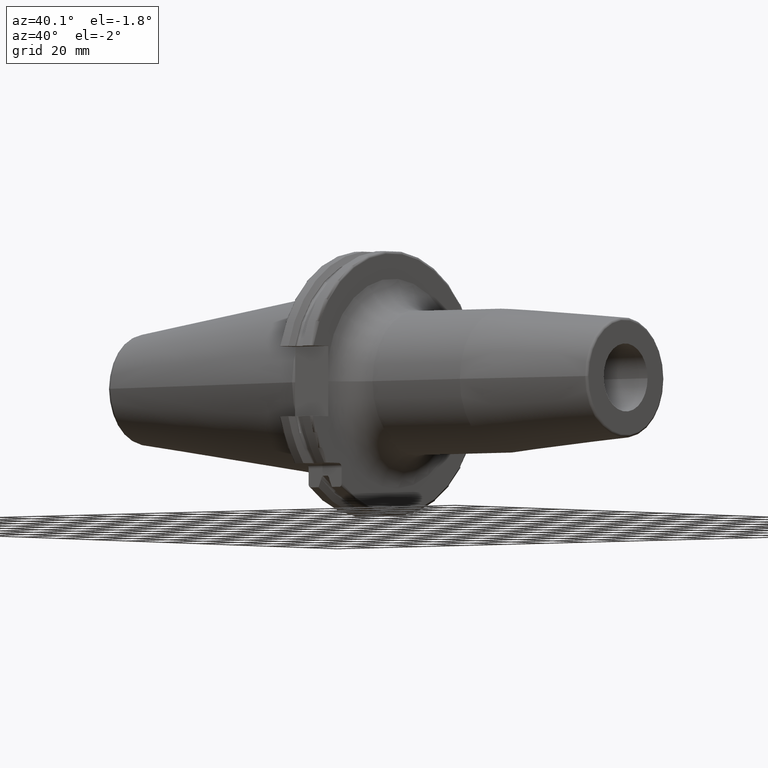
[diagram: clean part render]
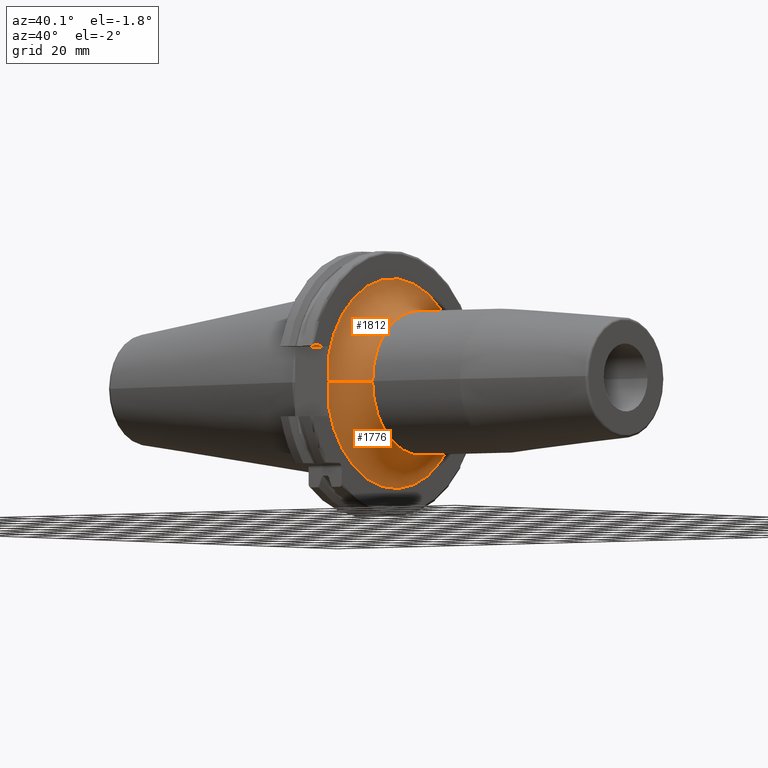
[diagram: same view with one multi-face feature highlighted, each face labeled with its STEP entity id]
A machine part, auxiliary view. The highlighted faces form ONE feature: a constant-radius fillet chain: 2 tangent blend faces with common blend radius 12 mm. The faces share edges in the B-rep.
Their STEP definitions:
[1] entity #1776 (Torus):
#126=CARTESIAN_POINT('',(1.905E1,0.E0,0.E0));
#127=DIRECTION('',(1.E0,0.E0,0.E0));
#128=DIRECTION('',(0.E0,-9.740227571911E-1,-2.264501456698E-1));
#129=AXIS2_PLACEMENT_3D('',#126,#127,#128);
#168=CARTESIAN_POINT('',(1.909173923321E1,-3.75E1,-4.609148908321E-3));
#169=CARTESIAN_POINT('',(1.909173257439E1,-3.75E1,-6.524612713159E-1));
#170=CARTESIAN_POINT('',(1.908878751441E1,-3.750000017558E1,-1.973005974719E0));
#171=CARTESIAN_POINT('',(1.907662175047E1,-3.749999938546E1,-3.981108997934E0));
#172=CARTESIAN_POINT('',(1.905945285205E1,-3.750000228258E1,-6.158205015502E0));
#173=CARTESIAN_POINT('',(1.905E1,-3.749999508366E1,-7.833713653429E0));
#174=CARTESIAN_POINT('',(1.905E1,-3.749999508366E1,-8.718006206379E0));
#176=CARTESIAN_POINT('',(3.105E1,-3.849999970919E1,-4.732059510132E-3));
#177=DIRECTION('',(0.E0,1.229106366268E-4,-9.999999924465E-1));
#178=DIRECTION('',(-9.965217305657E-1,8.333330909915E-2,1.024255015096E-5));
#179=AXIS2_PLACEMENT_3D('',#176,#177,#178);
#181=CARTESIAN_POINT('',(1.908506987748E1,3.53E1,-1.29E1));
#182=CARTESIAN_POINT('',(1.911130074422E1,3.53E1,-1.190259367515E1));
#183=CARTESIAN_POINT('',(1.918615062163E1,3.53E1,-9.954011799594E0));
#184=CARTESIAN_POINT('',(1.931372287873E1,3.53E1,-7.123640777465E0));
#185=CARTESIAN_POINT('',(1.941452708630E1,3.53E1,-4.518600156820E0));
#186=CARTESIAN_POINT('',(1.947345293102E1,3.53E1,-2.126169375915E0));
#187=CARTESIAN_POINT('',(1.948455742581E1,3.53E1,-6.812804737907E-1));
#188=CARTESIAN_POINT('',(1.948453409026E1,3.53E1,4.342307535141E-3));
#190=CARTESIAN_POINT('',(1.905E1,3.627451494753E1,-1.290002180538E1));
#191=CARTESIAN_POINT('',(1.905E1,3.611016461991E1,-1.290002180538E1));
#192=CARTESIAN_POINT('',(1.905599236746E1,3.578338474467E1,-1.289998909731E1));
#193=CARTESIAN_POINT('',(1.907352003926E1,3.546049088899E1,-1.29E1));
#194=CARTESIAN_POINT('',(1.908506987748E1,3.53E1,-1.29E1));
#206=CARTESIAN_POINT('',(1.948453409026E1,3.53E1,4.342307535141E-3));
#215=CARTESIAN_POINT('',(3.105E1,3.849999970871E1,4.735944443007E-3));
#216=DIRECTION('',(0.E0,-1.230115439742E-4,9.999999924341E-1));
#217=DIRECTION('',(-9.637888258114E-1,-2.666666423927E-1,-3.280307565533E-5));
#218=AXIS2_PLACEMENT_3D('',#215,#216,#217);
#226=CARTESIAN_POINT('',(1.909173923321E1,-3.75E1,-4.609148908321E-3));
#962=CARTESIAN_POINT('',(3.105E1,0.E0,0.E0));
#963=DIRECTION('',(1.E0,0.E0,0.E0));
#964=DIRECTION('',(0.E0,-1.E0,0.E0));
#965=AXIS2_PLACEMENT_3D('',#962,#963,#964);
#1484=CARTESIAN_POINT('',(1.905E1,-3.749987615186E1,-8.718330608288E0));
#1485=CARTESIAN_POINT('',(1.905E1,3.627451358574E1,-1.289998698132E1));
#1486=VERTEX_POINT('',#1484);
#1487=VERTEX_POINT('',#1485);
#1488=CARTESIAN_POINT('',(3.105E1,-2.65E1,0.E0));
#1489=CARTESIAN_POINT('',(3.105E1,2.65E1,0.E0));
#1490=VERTEX_POINT('',#1488);
#1491=VERTEX_POINT('',#1489);
#1504=VERTEX_POINT('',#206);
#1506=VERTEX_POINT('',#181);
#1507=VERTEX_POINT('',#226);
#1758=CARTESIAN_POINT('',(3.105E1,0.E0,0.E0));
#1759=DIRECTION('',(1.E0,0.E0,0.E0));
#1760=DIRECTION('',(0.E0,-1.485959642860E-3,9.999988959614E-1));
#1761=AXIS2_PLACEMENT_3D('',#1758,#1759,#1760);
#1762=TOROIDAL_SURFACE('',#1761,3.85E1,1.2E1);
#1763=ORIENTED_EDGE('',*,*,#1720,.F.);
#1765=ORIENTED_EDGE('',*,*,#1764,.F.);
#1767=ORIENTED_EDGE('',*,*,#1766,.T.);
#1769=ORIENTED_EDGE('',*,*,#1768,.T.);
#1771=ORIENTED_EDGE('',*,*,#1770,.F.);
#1772=ORIENTED_EDGE('',*,*,#1662,.F.);
#1773=ORIENTED_EDGE('',*,*,#1685,.F.);
#1774=EDGE_LOOP('',(#1763,#1765,#1767,#1769,#1771,#1772,#1773));
#1775=FACE_OUTER_BOUND('',#1774,.F.);
#1776=ADVANCED_FACE('',(#1775),#1762,.F.);
#130=CIRCLE('',#129,3.85E1);
#175=B_SPLINE_CURVE_WITH_KNOTS('',3,(#168,#169,#170,#171,#172,#173,#174),
.UNSPECIFIED.,.F.,.F.,(4,1,1,1,4),(0.E0,2.5E-1,5.E-1,7.5E-1,1.E0),
.UNSPECIFIED.);
#180=CIRCLE('',#179,1.2E1);
#189=B_SPLINE_CURVE_WITH_KNOTS('',3,(#181,#182,#183,#184,#185,#186,#187,#188),
.UNSPECIFIED.,.F.,.F.,(4,1,1,1,1,4),(0.E0,2.E-1,4.E-1,6.E-1,8.E-1,1.E0),
.UNSPECIFIED.);
#195=B_SPLINE_CURVE_WITH_KNOTS('',3,(#190,#191,#192,#193,#194),.UNSPECIFIED.,
.F.,.F.,(4,1,4),(0.E0,5.E-1,1.E0),.UNSPECIFIED.);
#219=CIRCLE('',#218,1.2E1);
#966=CIRCLE('',#965,2.65E1);
#1662=EDGE_CURVE('',#1506,#1504,#189,.T.);
#1685=EDGE_CURVE('',#1487,#1506,#195,.T.);
#1720=EDGE_CURVE('',#1486,#1487,#130,.T.);
#1764=EDGE_CURVE('',#1507,#1486,#175,.T.);
#1766=EDGE_CURVE('',#1507,#1490,#180,.T.);
#1768=EDGE_CURVE('',#1490,#1491,#966,.T.);
#1770=EDGE_CURVE('',#1504,#1491,#219,.T.);
[2] entity #1812 (Torus):
#151=CARTESIAN_POINT('',(1.905E1,0.E0,0.E0));
#152=DIRECTION('',(1.E0,0.E0,0.E0));
#153=DIRECTION('',(0.E0,9.421950764359E-1,3.350648264739E-1));
#154=AXIS2_PLACEMENT_3D('',#151,#152,#153);
#176=CARTESIAN_POINT('',(3.105E1,-3.849999970919E1,-4.732059510132E-3));
#177=DIRECTION('',(0.E0,1.229106366268E-4,-9.999999924465E-1));
#178=DIRECTION('',(-9.965217305657E-1,8.333330909915E-2,1.024255015096E-5));
#179=AXIS2_PLACEMENT_3D('',#176,#177,#178);
#200=CARTESIAN_POINT('',(1.908506987748E1,3.53E1,1.29E1));
#201=CARTESIAN_POINT('',(1.907352069399E1,3.546048179124E1,1.29E1));
#202=CARTESIAN_POINT('',(1.905599303077E1,3.578337571384E1,1.289997628185E1));
#203=CARTESIAN_POINT('',(1.905E1,3.611013705185E1,1.290004743629E1));
#204=CARTESIAN_POINT('',(1.905E1,3.627449650086E1,1.290004743629E1));
#206=CARTESIAN_POINT('',(1.948453409026E1,3.53E1,4.342307535141E-3));
#207=CARTESIAN_POINT('',(1.948451076802E1,3.53E1,6.895743023072E-1));
#208=CARTESIAN_POINT('',(1.947332061544E1,3.53E1,2.133618128360E0));
#209=CARTESIAN_POINT('',(1.941432184081E1,3.53E1,4.524625712119E0));
#210=CARTESIAN_POINT('',(1.931352878356E1,3.53E1,7.127980880441E0));
#211=CARTESIAN_POINT('',(1.918604869387E1,3.53E1,9.956414542695E0));
#212=CARTESIAN_POINT('',(1.911127863181E1,3.53E1,1.190343448062E1));
#213=CARTESIAN_POINT('',(1.908506987748E1,3.53E1,1.29E1));
#215=CARTESIAN_POINT('',(3.105E1,3.849999970871E1,4.735944443007E-3));
#216=DIRECTION('',(0.E0,-1.230115439742E-4,9.999999924341E-1));
#217=DIRECTION('',(-9.637888258114E-1,-2.666666423927E-1,-3.280307565533E-5));
#218=AXIS2_PLACEMENT_3D('',#215,#216,#217);
#220=CARTESIAN_POINT('',(1.905E1,-3.749998345262E1,8.718832889522E0));
#221=CARTESIAN_POINT('',(1.905E1,-3.749998345262E1,7.832933292564E0));
#222=CARTESIAN_POINT('',(1.905948438553E1,-3.750000768271E1,6.153500017850E0));
#223=CARTESIAN_POINT('',(1.907667275755E1,-3.749999793158E1,3.974532629768E0));
#224=CARTESIAN_POINT('',(1.908882413565E1,-3.750000059098E1,1.965011639233E0));
#225=CARTESIAN_POINT('',(1.909174589594E1,-3.75E1,6.436229094288E-1));
#226=CARTESIAN_POINT('',(1.909173923321E1,-3.75E1,-4.609148908321E-3));
#952=CARTESIAN_POINT('',(3.105E1,0.E0,0.E0));
#953=DIRECTION('',(1.E0,0.E0,0.E0));
#954=DIRECTION('',(0.E0,1.E0,0.E0));
#955=AXIS2_PLACEMENT_3D('',#952,#953,#954);
#1488=CARTESIAN_POINT('',(3.105E1,-2.65E1,0.E0));
#1489=CARTESIAN_POINT('',(3.105E1,2.65E1,0.E0));
#1490=VERTEX_POINT('',#1488);
#1491=VERTEX_POINT('',#1489);
#1492=CARTESIAN_POINT('',(1.905E1,3.627451044278E1,1.289999581925E1));
#1493=CARTESIAN_POINT('',(1.905E1,-3.749936218230E1,8.720541033701E0));
#1494=VERTEX_POINT('',#1492);
#1495=VERTEX_POINT('',#1493);
#1504=VERTEX_POINT('',#206);
#1505=VERTEX_POINT('',#213);
#1507=VERTEX_POINT('',#226);
#1796=CARTESIAN_POINT('',(3.105E1,0.E0,0.E0));
#1797=DIRECTION('',(1.E0,0.E0,0.E0));
#1798=DIRECTION('',(0.E0,1.485959642860E-3,-9.999988959614E-1));
#1799=AXIS2_PLACEMENT_3D('',#1796,#1797,#1798);
#1800=TOROIDAL_SURFACE('',#1799,3.85E1,1.2E1);
#1801=ORIENTED_EDGE('',*,*,#1745,.F.);
#1803=ORIENTED_EDGE('',*,*,#1802,.F.);
#1804=ORIENTED_EDGE('',*,*,#1664,.F.);
#1805=ORIENTED_EDGE('',*,*,#1770,.T.);
#1807=ORIENTED_EDGE('',*,*,#1806,.T.);
#1808=ORIENTED_EDGE('',*,*,#1766,.F.);
#1809=ORIENTED_EDGE('',*,*,#1783,.F.);
#1810=EDGE_LOOP('',(#1801,#1803,#1804,#1805,#1807,#1808,#1809));
#1811=FACE_OUTER_BOUND('',#1810,.F.);
#1812=ADVANCED_FACE('',(#1811),#1800,.F.);
#155=CIRCLE('',#154,3.85E1);
#180=CIRCLE('',#179,1.2E1);
#205=B_SPLINE_CURVE_WITH_KNOTS('',3,(#200,#201,#202,#203,#204),.UNSPECIFIED.,
.F.,.F.,(4,1,4),(0.E0,5.E-1,1.E0),.UNSPECIFIED.);
#214=B_SPLINE_CURVE_WITH_KNOTS('',3,(#206,#207,#208,#209,#210,#211,#212,#213),
.UNSPECIFIED.,.F.,.F.,(4,1,1,1,1,4),(0.E0,2.E-1,4.E-1,6.E-1,8.E-1,1.E0),
.UNSPECIFIED.);
#219=CIRCLE('',#218,1.2E1);
#227=B_SPLINE_CURVE_WITH_KNOTS('',3,(#220,#221,#222,#223,#224,#225,#226),
.UNSPECIFIED.,.F.,.F.,(4,1,1,1,4),(0.E0,2.5E-1,5.E-1,7.5E-1,1.E0),
.UNSPECIFIED.);
#956=CIRCLE('',#955,2.65E1);
#1664=EDGE_CURVE('',#1504,#1505,#214,.T.);
#1745=EDGE_CURVE('',#1494,#1495,#155,.T.);
#1766=EDGE_CURVE('',#1507,#1490,#180,.T.);
#1770=EDGE_CURVE('',#1504,#1491,#219,.T.);
#1783=EDGE_CURVE('',#1495,#1507,#227,.T.);
#1802=EDGE_CURVE('',#1505,#1494,#205,.T.);
#1806=EDGE_CURVE('',#1491,#1490,#956,.T.);